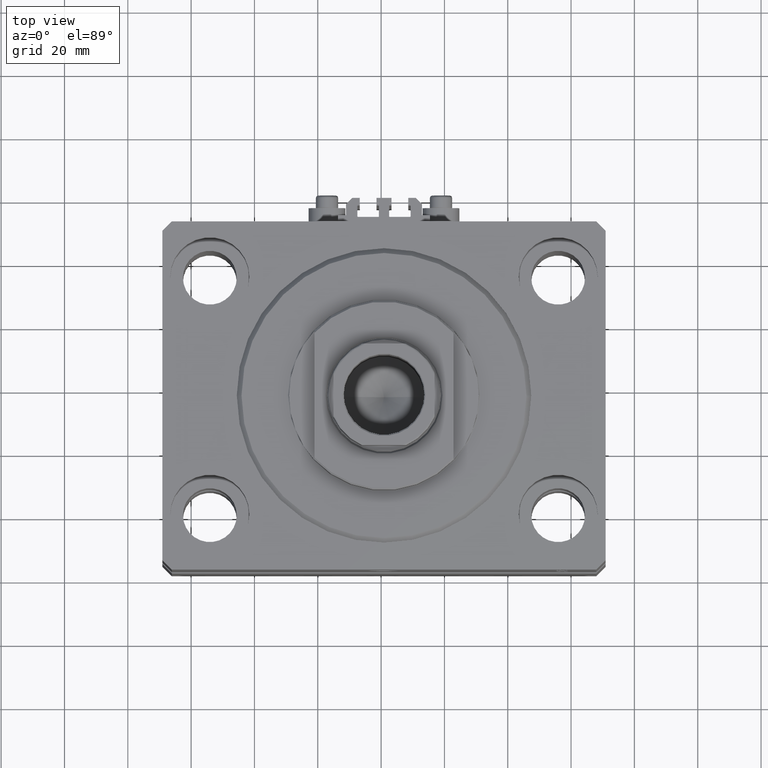
[diagram: clean part render]
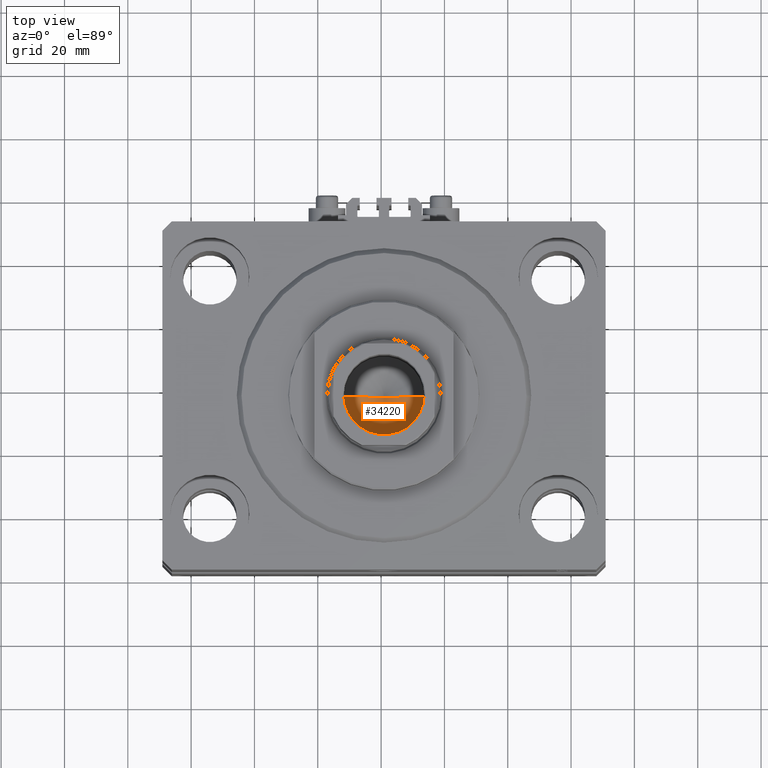
[diagram: same view with one face highlighted and labeled with its STEP entity id]
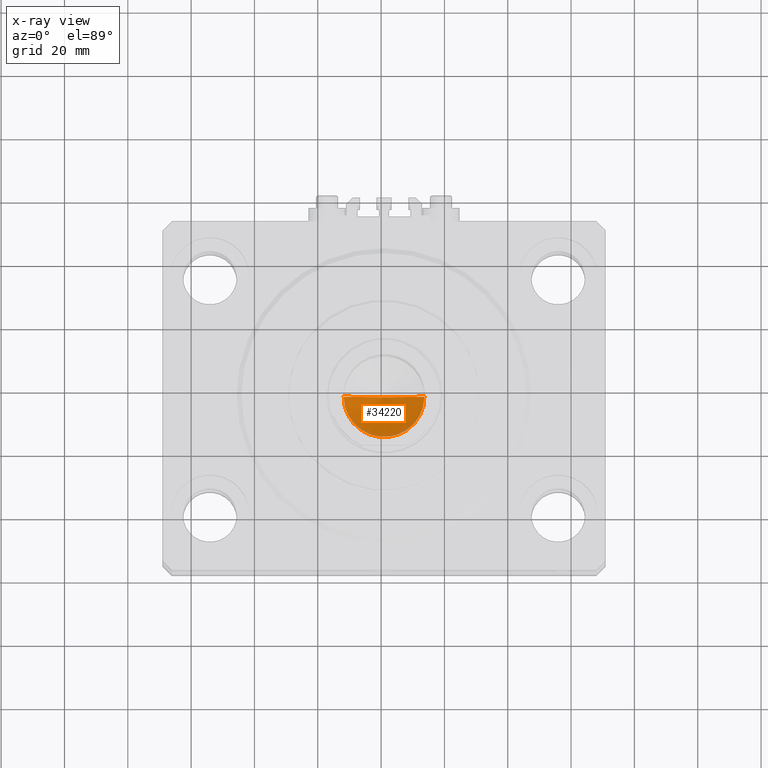
[diagram: x-ray of the same camera — body ghosted, the highlighted face saturated]
A machine part, top view. The second image highlights one B-rep face of the part: STEP entity #34220.
The next image is the same camera in x-ray: the body ghosted, the highlighted face saturated — about 8% of this face is hidden behind the body in this view.
In plain terms, the highlighted conical surface has half-angle 59 deg.
Its self-contained STEP definition (entity closure, byte-faithful):
#124 = EDGE_CURVE ( 'NONE', #21647, #4259, #2720, .T. ) ;
#1924 = ORIENTED_EDGE ( 'NONE', *, *, #12513, .F. ) ;
#2720 = CIRCLE ( 'NONE', #27151, 12.74999999999999112 ) ;
#4259 = VERTEX_POINT ( 'NONE', #11064 ) ;
#6860 = DIRECTION ( 'NONE',  ( 1.000000000000000000, 0.000000000000000000, 0.000000000000000000 ) ) ;
#7706 = VECTOR ( 'NONE', #13678, 1000.000000000000000 ) ;
#8065 = EDGE_LOOP ( 'NONE', ( #1924, #35439, #48404 ) ) ;
#11064 = CARTESIAN_POINT ( 'NONE',  ( 12.74999999999999112, 0.000000000000000000, 70.00000000000000000 ) ) ;
#12513 = EDGE_CURVE ( 'NONE', #29300, #4259, #35942, .T. ) ;
#13678 = DIRECTION ( 'NONE',  ( -0.8571673007021117785, 1.049727191138617956E-16, 0.5150380749100550437 ) ) ;
#16956 = CARTESIAN_POINT ( 'NONE',  ( 12.74999999999999112, 0.000000000000000000, 70.00000000000000000 ) ) ;
#18472 = DIRECTION ( 'NONE',  ( -0.000000000000000000, -0.000000000000000000, 1.000000000000000000 ) ) ;
#21582 = AXIS2_PLACEMENT_3D ( 'NONE', #48566, #18472, #6860 ) ;
#21647 = VERTEX_POINT ( 'NONE', #46466 ) ;
#25741 = LINE ( 'NONE', #32898, #7706 ) ;
#27151 = AXIS2_PLACEMENT_3D ( 'NONE', #36280, #28390, #39742 ) ;
#27901 = CONICAL_SURFACE ( 'NONE', #21582, 12.74999999999999112, 1.029744258676653423 ) ;
#28390 = DIRECTION ( 'NONE',  ( -0.000000000000000000, -0.000000000000000000, 1.000000000000000000 ) ) ;
#29300 = VERTEX_POINT ( 'NONE', #42884 ) ;
#30631 = VECTOR ( 'NONE', #32481, 1000.000000000000000 ) ;
#32481 = DIRECTION ( 'NONE',  ( 0.8571673007021117785, 0.000000000000000000, 0.5150380749100550437 ) ) ;
#32898 = CARTESIAN_POINT ( 'NONE',  ( -12.74999999999999112, 1.561424668912874125E-15, 70.00000000000000000 ) ) ;
#34220 = ADVANCED_FACE ( 'NONE', ( #48071 ), #27901, .F. ) ;
#35439 = ORIENTED_EDGE ( 'NONE', *, *, #46624, .T. ) ;
#35942 = LINE ( 'NONE', #16956, #30631 ) ;
#36280 = CARTESIAN_POINT ( 'NONE',  ( 0.000000000000000000, 0.000000000000000000, 70.00000000000000000 ) ) ;
#39742 = DIRECTION ( 'NONE',  ( 1.000000000000000000, 0.000000000000000000, 0.000000000000000000 ) ) ;
#42884 = CARTESIAN_POINT ( 'NONE',  ( -1.307202896762960287E-14, 0.000000000000000000, 62.33902710739860709 ) ) ;
#46466 = CARTESIAN_POINT ( 'NONE',  ( -12.74999999999999112, 1.561424668912874125E-15, 70.00000000000000000 ) ) ;
#46624 = EDGE_CURVE ( 'NONE', #29300, #21647, #25741, .T. ) ;
#48071 = FACE_OUTER_BOUND ( 'NONE', #8065, .T. ) ;
#48404 = ORIENTED_EDGE ( 'NONE', *, *, #124, .T. ) ;
#48566 = CARTESIAN_POINT ( 'NONE',  ( 0.000000000000000000, 0.000000000000000000, 70.00000000000000000 ) ) ;